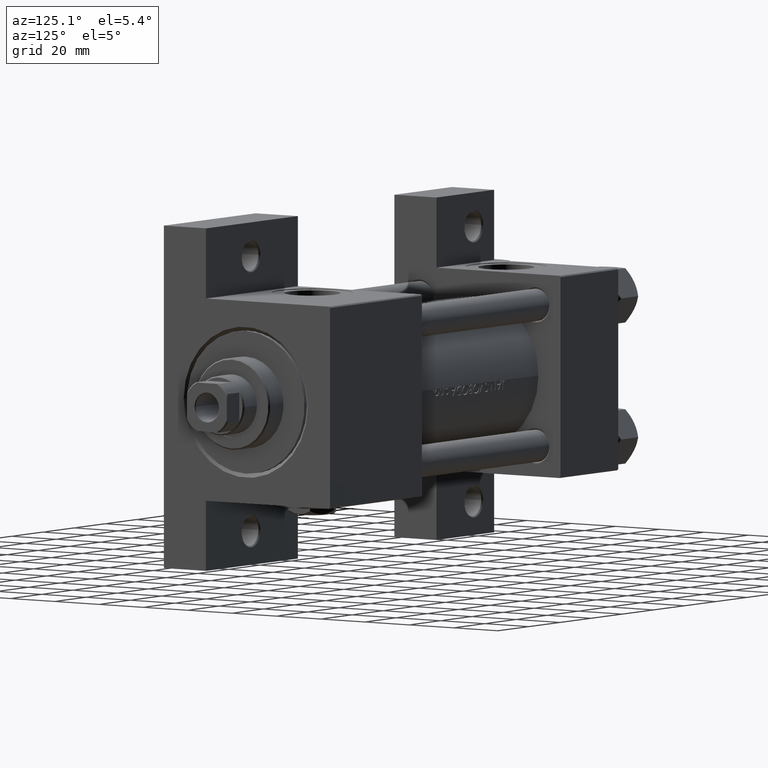
[diagram: clean part render]
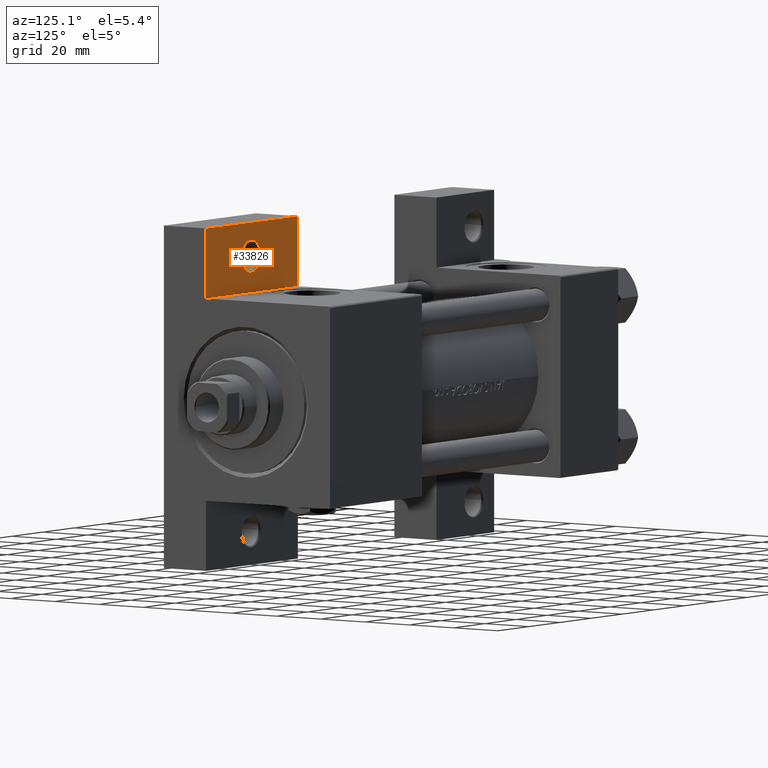
[diagram: same view with one face highlighted and labeled with its STEP entity id]
A machine part, auxiliary view. The second image highlights one B-rep face of the part: STEP entity #33826.
In plain terms, the highlighted planar face has unit normal (0, -1, 0).
Its self-contained STEP definition (entity closure, byte-faithful):
#39 = EDGE_CURVE ( 'NONE', #35626, #46212, #14786, .T. ) ;
#574 = EDGE_CURVE ( 'NONE', #44392, #41119, #11865, .T. ) ;
#1313 = EDGE_CURVE ( 'NONE', #46212, #18030, #8505, .T. ) ;
#1502 = FACE_OUTER_BOUND ( 'NONE', #11598, .T. ) ;
#1705 = DIRECTION ( 'NONE',  ( 1.000000000000000000, -3.528251137579946599E-16, 0.000000000000000000 ) ) ;
#3514 = ORIENTED_EDGE ( 'NONE', *, *, #10628, .T. ) ;
#3562 = AXIS2_PLACEMENT_3D ( 'NONE', #27888, #16937, #43076 ) ;
#3978 = CARTESIAN_POINT ( 'NONE',  ( 126.0000000000000000, -37.50000000000000000, -18.50000000000000000 ) ) ;
#4762 = VECTOR ( 'NONE', #46117, 1000.000000000000000 ) ;
#7575 = ORIENTED_EDGE ( 'NONE', *, *, #1313, .F. ) ;
#8505 = LINE ( 'NONE', #42618, #4762 ) ;
#9159 = EDGE_LOOP ( 'NONE', ( #9443, #3514 ) ) ;
#9443 = ORIENTED_EDGE ( 'NONE', *, *, #574, .T. ) ;
#10268 = VECTOR ( 'NONE', #14541, 1000.000000000000000 ) ;
#10585 = CARTESIAN_POINT ( 'NONE',  ( 150.0005000000000734, -50.99999999999999289, -18.50000000000000000 ) ) ;
#10628 = EDGE_CURVE ( 'NONE', #41119, #44392, #37528, .T. ) ;
#11598 = EDGE_LOOP ( 'NONE', ( #19969, #13916, #45545, #7575 ) ) ;
#11865 = CIRCLE ( 'NONE', #34162, 5.999499999999962974 ) ;
#13365 = CARTESIAN_POINT ( 'NONE',  ( 156.0000000000000284, -50.99999999999999289, -18.50000000000000000 ) ) ;
#13916 = ORIENTED_EDGE ( 'NONE', *, *, #25487, .F. ) ;
#14541 = DIRECTION ( 'NONE',  ( -0.000000000000000000, -1.000000000000000000, -0.000000000000000000 ) ) ;
#14786 = LINE ( 'NONE', #26237, #10268 ) ;
#15309 = CARTESIAN_POINT ( 'NONE',  ( 185.0000000000000000, -63.50000000000002842, -18.50000000000000000 ) ) ;
#15633 = DIRECTION ( 'NONE',  ( 0.000000000000000000, 0.000000000000000000, -1.000000000000000000 ) ) ;
#16123 = DIRECTION ( 'NONE',  ( -1.000000000000000000, 0.000000000000000000, 0.000000000000000000 ) ) ;
#16442 = PLANE ( 'NONE',  #3562 ) ;
#16937 = DIRECTION ( 'NONE',  ( 0.000000000000000000, 0.000000000000000000, -1.000000000000000000 ) ) ;
#17889 = EDGE_CURVE ( 'NONE', #18030, #22063, #19916, .T. ) ;
#18030 = VERTEX_POINT ( 'NONE', #37320 ) ;
#19916 = LINE ( 'NONE', #35609, #28242 ) ;
#19969 = ORIENTED_EDGE ( 'NONE', *, *, #39, .F. ) ;
#22063 = VERTEX_POINT ( 'NONE', #37535 ) ;
#25050 = CARTESIAN_POINT ( 'NONE',  ( 185.0000000000000000, -37.50000000000000711, -18.50000000000000355 ) ) ;
#25487 = EDGE_CURVE ( 'NONE', #22063, #35626, #26631, .T. ) ;
#25564 = VECTOR ( 'NONE', #1705, 1000.000000000000000 ) ;
#26237 = CARTESIAN_POINT ( 'NONE',  ( 185.0000000000000000, -63.50000000000002842, -18.50000000000000000 ) ) ;
#26631 = LINE ( 'NONE', #3978, #25564 ) ;
#27888 = CARTESIAN_POINT ( 'NONE',  ( 0.000000000000000000, 0.000000000000000000, -18.50000000000000000 ) ) ;
#28242 = VECTOR ( 'NONE', #31132, 1000.000000000000000 ) ;
#31132 = DIRECTION ( 'NONE',  ( 0.000000000000000000, 1.000000000000000000, 0.000000000000000000 ) ) ;
#32789 = DIRECTION ( 'NONE',  ( -1.000000000000000000, 0.000000000000000000, 0.000000000000000000 ) ) ;
#33826 = ADVANCED_FACE ( 'NONE', ( #39599, #1502 ), #16442, .F. ) ;
#34162 = AXIS2_PLACEMENT_3D ( 'NONE', #42515, #15633, #16123 ) ;
#35187 = CARTESIAN_POINT ( 'NONE',  ( 161.9994999999999834, -50.99999999999999289, -18.50000000000000000 ) ) ;
#35609 = CARTESIAN_POINT ( 'NONE',  ( 126.0000000000000000, -63.50000000000000000, -18.50000000000000000 ) ) ;
#35626 = VERTEX_POINT ( 'NONE', #25050 ) ;
#37320 = CARTESIAN_POINT ( 'NONE',  ( 126.0000000000000000, -63.50000000000000000, -18.50000000000000000 ) ) ;
#37528 = CIRCLE ( 'NONE', #45493, 5.999499999999962974 ) ;
#37535 = CARTESIAN_POINT ( 'NONE',  ( 126.0000000000000000, -37.50000000000000000, -18.50000000000000000 ) ) ;
#39599 = FACE_BOUND ( 'NONE', #9159, .T. ) ;
#41119 = VERTEX_POINT ( 'NONE', #10585 ) ;
#42515 = CARTESIAN_POINT ( 'NONE',  ( 156.0000000000000284, -50.99999999999999289, -18.50000000000000000 ) ) ;
#42618 = CARTESIAN_POINT ( 'NONE',  ( 126.0000000000000000, -63.50000000000000000, -18.50000000000000000 ) ) ;
#43076 = DIRECTION ( 'NONE',  ( -1.000000000000000000, 0.000000000000000000, -0.000000000000000000 ) ) ;
#43743 = DIRECTION ( 'NONE',  ( 0.000000000000000000, 0.000000000000000000, -1.000000000000000000 ) ) ;
#44392 = VERTEX_POINT ( 'NONE', #35187 ) ;
#45493 = AXIS2_PLACEMENT_3D ( 'NONE', #13365, #43743, #32789 ) ;
#45545 = ORIENTED_EDGE ( 'NONE', *, *, #17889, .F. ) ;
#46117 = DIRECTION ( 'NONE',  ( -1.000000000000000000, 4.704334850106595794E-16, -0.000000000000000000 ) ) ;
#46212 = VERTEX_POINT ( 'NONE', #15309 ) ;